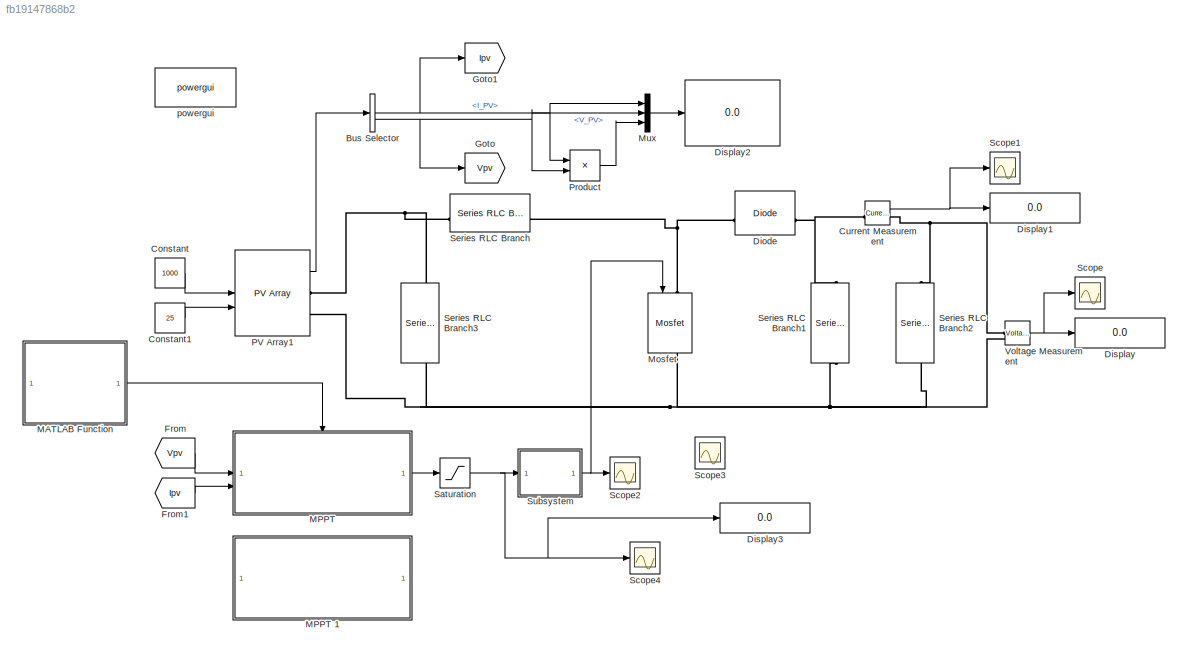
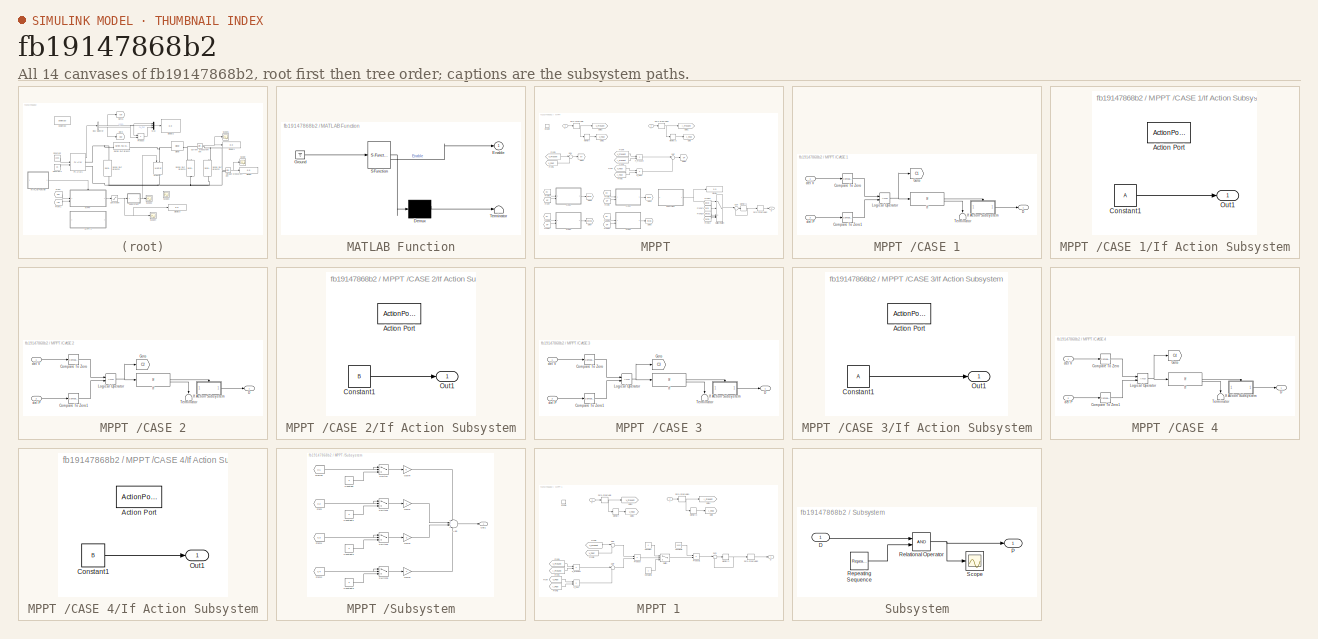
[diagram: thumbnail index - all 14 canvases of the model, root first then tree order]
MODEL slx_fb19147868b2
KIND model
CONFIG AbsTol = auto
CONFIG EnableMultiTasking = off
CONFIG FixedStep = Ts
CONFIG InitFcn = Ts = 1e-6;\nN = 1000;\nA = -0.001;\nB = 0.001\n
CONFIG MaxStep = auto
CONFIG MinStep = auto
CONFIG RelTol = 1e-3
CONFIG SampleTimeConstraint = Unconstrained
CONFIG SolverName = FixedStepAuto
CONFIG StartTime = 0.0
CONFIG StopTime = 1
BLOCK [BusSelector] Bus Selector
  OutputSignals = I_PV,V_PV
BLOCK [Constant] Constant
  Value = 1000
BLOCK [Constant] Constant1
  Value = 25
BLOCK [Reference] Current Measurement  REF=spsCurrentMeasurementLib/Current Measurement
  LibrarySourceBlock = sps_lib/Sensors and Measurements/Current Measurement
  SourceBlock = spsCurrentMeasurementLib/Current Measurement
  SourceType = Current Measurement
  UserDataPersistent = on
BLOCK [Reference] Diode  REF=spsDiodeLib/Diode
  LibrarySourceBlock = sps_lib/Power Electronics/Diode
  SourceBlock = spsDiodeLib/Diode
  SourceType = Diode
BLOCK [Display] Display
  Decimation = 1
BLOCK [Display] Display1
  Decimation = 1
BLOCK [Display] Display2
  Decimation = 1
BLOCK [Display] Display3
  Decimation = 1
BLOCK [From] From
  GotoTag = Vpv
BLOCK [From] From1
  GotoTag = Ipv
BLOCK [Goto] Goto
  GotoTag = Vpv
BLOCK [Goto] Goto1
  GotoTag = Ipv
BLOCK [SubSystem] MATLAB Function
  ErrorFcn = Stateflow.Translate.translate
  PermitHierarchicalResolution = ExplicitOnly
  SFBlockType = MATLAB Function
  TreatAsAtomicUnit = on
BLOCK [Demux] MATLAB Function/ Demux 
  Outputs = 1
BLOCK [Ground] MATLAB Function/ Ground 
BLOCK [S-Function] MATLAB Function/ SFunction 
  EnableBusSupport = on
  FunctionName = sf_sfun
  PortCounts = [1 2]
  SFcnIsStateOwnerBlock = off
  SFunctionDeploymentMode = off
  Tag = Stateflow S-Function 2
BLOCK [Terminator] MATLAB Function/ Terminator 
BLOCK [Outport] MATLAB Function/Enable
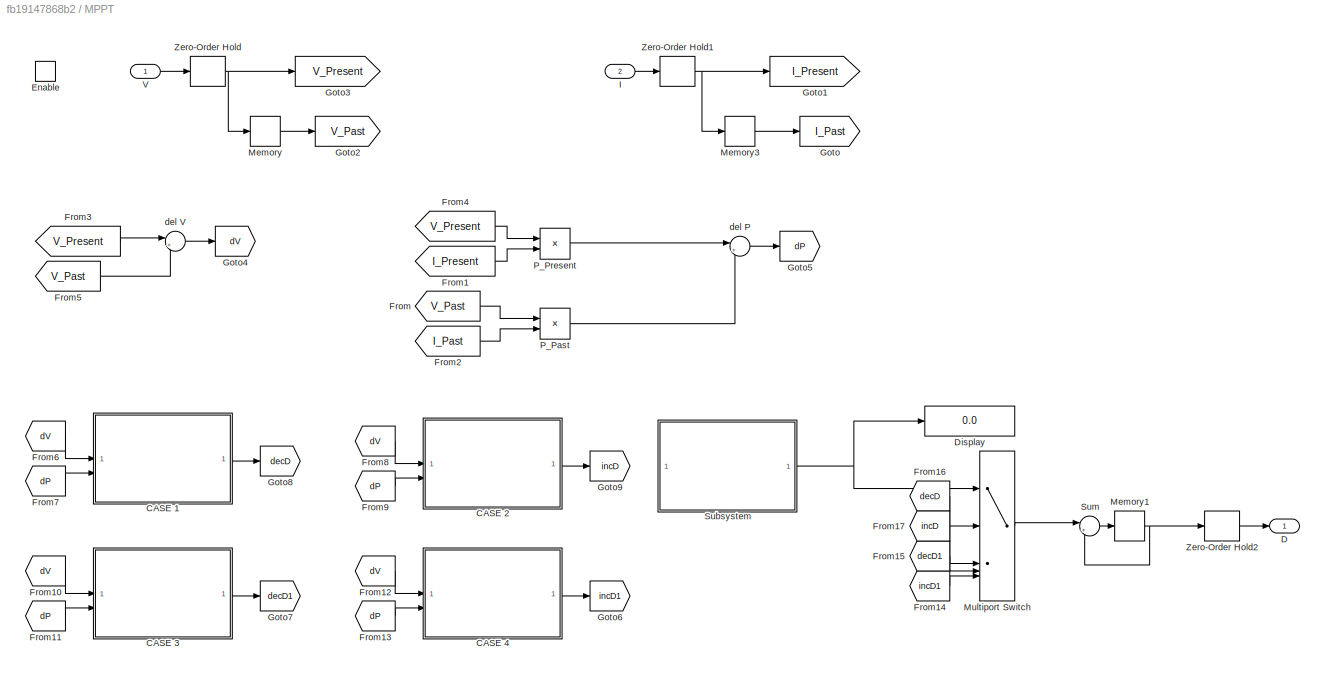
BLOCK [SubSystem] MPPT 
BLOCK [SubSystem] MPPT /CASE 1
BLOCK [Reference] MPPT /CASE 1/Compare To Zero  REF=simulink/Logic and Bit
Operations/Compare
To Zero
  SourceBlock = simulink/Logic and Bit\nOperations/Compare\nTo Zero
  SourceType = Compare To Zero
BLOCK [Reference] MPPT /CASE 1/Compare To Zero1  REF=simulink/Logic and Bit
Operations/Compare
To Zero
  SourceBlock = simulink/Logic and Bit\nOperations/Compare\nTo Zero
  SourceType = Compare To Zero
BLOCK [Outport] MPPT /CASE 1/D
BLOCK [Goto] MPPT /CASE 1/Goto
  GotoTag = C1
  TagVisibility = global
BLOCK [If] MPPT /CASE 1/If
  IfExpression = u1 ~= 1
BLOCK [SubSystem] MPPT /CASE 1/If Action Subsystem
  TreatAsAtomicUnit = on
BLOCK [ActionPort] MPPT /CASE 1/If Action Subsystem/Action Port
  ActionPortLabel = if(u1 ~= 1)
BLOCK [Constant] MPPT /CASE 1/If Action Subsystem/Constant1
  Value = A
BLOCK [Outport] MPPT /CASE 1/If Action Subsystem/Out1
BLOCK [Logic] MPPT /CASE 1/Logical Operator
  AllPortsSameDT = off
  OutDataTypeStr = boolean
BLOCK [Terminator] MPPT /CASE 1/Terminator
  NameLocation = left
BLOCK [Inport] MPPT /CASE 1/del P
  Port = 2
BLOCK [Inport] MPPT /CASE 1/del V
BLOCK [SubSystem] MPPT /CASE 2
BLOCK [Reference] MPPT /CASE 2/Compare To Zero  REF=simulink/Logic and Bit
Operations/Compare
To Zero
  SourceBlock = simulink/Logic and Bit\nOperations/Compare\nTo Zero
  SourceType = Compare To Zero
BLOCK [Reference] MPPT /CASE 2/Compare To Zero1  REF=simulink/Logic and Bit
Operations/Compare
To Zero
  SourceBlock = simulink/Logic and Bit\nOperations/Compare\nTo Zero
  SourceType = Compare To Zero
BLOCK [Outport] MPPT /CASE 2/D
BLOCK [Goto] MPPT /CASE 2/Goto
  GotoTag = C2
  TagVisibility = global
BLOCK [If] MPPT /CASE 2/If
  IfExpression = u1 ~= 1
BLOCK [SubSystem] MPPT /CASE 2/If Action Subsystem
  TreatAsAtomicUnit = on
BLOCK [ActionPort] MPPT /CASE 2/If Action Subsystem/Action Port
  ActionPortLabel = if(u1 ~= 1)
BLOCK [Constant] MPPT /CASE 2/If Action Subsystem/Constant1
  Value = B
BLOCK [Outport] MPPT /CASE 2/If Action Subsystem/Out1
BLOCK [Logic] MPPT /CASE 2/Logical Operator
  AllPortsSameDT = off
  OutDataTypeStr = boolean
BLOCK [Terminator] MPPT /CASE 2/Terminator
  NameLocation = left
BLOCK [Inport] MPPT /CASE 2/del P
  Port = 2
BLOCK [Inport] MPPT /CASE 2/del V
BLOCK [SubSystem] MPPT /CASE 3
BLOCK [Reference] MPPT /CASE 3/Compare To Zero  REF=simulink/Logic and Bit
Operations/Compare
To Zero
  SourceBlock = simulink/Logic and Bit\nOperations/Compare\nTo Zero
  SourceType = Compare To Zero
BLOCK [Reference] MPPT /CASE 3/Compare To Zero1  REF=simulink/Logic and Bit
Operations/Compare
To Zero
  SourceBlock = simulink/Logic and Bit\nOperations/Compare\nTo Zero
  SourceType = Compare To Zero
BLOCK [Outport] MPPT /CASE 3/D
BLOCK [Goto] MPPT /CASE 3/Goto
  GotoTag = C3
  TagVisibility = global
BLOCK [If] MPPT /CASE 3/If
  IfExpression = u1 ~= 1
BLOCK [SubSystem] MPPT /CASE 3/If Action Subsystem
  TreatAsAtomicUnit = on
BLOCK [ActionPort] MPPT /CASE 3/If Action Subsystem/Action Port
  ActionPortLabel = if(u1 ~= 1)
BLOCK [Constant] MPPT /CASE 3/If Action Subsystem/Constant1
  Value = A
BLOCK [Outport] MPPT /CASE 3/If Action Subsystem/Out1
BLOCK [Logic] MPPT /CASE 3/Logical Operator
  AllPortsSameDT = off
  OutDataTypeStr = boolean
BLOCK [Terminator] MPPT /CASE 3/Terminator
  NameLocation = left
BLOCK [Inport] MPPT /CASE 3/del P
  Port = 2
BLOCK [Inport] MPPT /CASE 3/del V
BLOCK [SubSystem] MPPT /CASE 4
BLOCK [Reference] MPPT /CASE 4/Compare To Zero  REF=simulink/Logic and Bit
Operations/Compare
To Zero
  SourceBlock = simulink/Logic and Bit\nOperations/Compare\nTo Zero
  SourceType = Compare To Zero
BLOCK [Reference] MPPT /CASE 4/Compare To Zero1  REF=simulink/Logic and Bit
Operations/Compare
To Zero
  SourceBlock = simulink/Logic and Bit\nOperations/Compare\nTo Zero
  SourceType = Compare To Zero
BLOCK [Outport] MPPT /CASE 4/D
BLOCK [Goto] MPPT /CASE 4/Goto
  GotoTag = C4
  TagVisibility = global
BLOCK [If] MPPT /CASE 4/If
  IfExpression = u1 ~= 1
BLOCK [SubSystem] MPPT /CASE 4/If Action Subsystem
  TreatAsAtomicUnit = on
BLOCK [ActionPort] MPPT /CASE 4/If Action Subsystem/Action Port
  ActionPortLabel = if(u1 ~= 1)
BLOCK [Constant] MPPT /CASE 4/If Action Subsystem/Constant1
  Value = B
BLOCK [Outport] MPPT /CASE 4/If Action Subsystem/Out1
BLOCK [Logic] MPPT /CASE 4/Logical Operator
  AllPortsSameDT = off
  OutDataTypeStr = boolean
BLOCK [Terminator] MPPT /CASE 4/Terminator
  NameLocation = left
BLOCK [Inport] MPPT /CASE 4/del P
  Port = 2
BLOCK [Inport] MPPT /CASE 4/del V
BLOCK [Outport] MPPT /D
BLOCK [Display] MPPT /Display
  Decimation = 1
BLOCK [EnablePort] MPPT /Enable
BLOCK [From] MPPT /From
  GotoTag = V_Past
BLOCK [From] MPPT /From1
  GotoTag = I_Present
BLOCK [From] MPPT /From10
  GotoTag = dV
BLOCK [From] MPPT /From11
  GotoTag = dP
BLOCK [From] MPPT /From12
  GotoTag = dV
BLOCK [From] MPPT /From13
  GotoTag = dP
BLOCK [From] MPPT /From14
  GotoTag = incD1
BLOCK [From] MPPT /From15
  GotoTag = decD1
BLOCK [From] MPPT /From16
  GotoTag = decD
BLOCK [From] MPPT /From17
  GotoTag = incD
BLOCK [From] MPPT /From2
  GotoTag = I_Past
BLOCK [From] MPPT /From3
  GotoTag = V_Present
BLOCK [From] MPPT /From4
  GotoTag = V_Present
BLOCK [From] MPPT /From5
  GotoTag = V_Past
BLOCK [From] MPPT /From6
  GotoTag = dV
BLOCK [From] MPPT /From7
  GotoTag = dP
BLOCK [From] MPPT /From8
  GotoTag = dV
BLOCK [From] MPPT /From9
  GotoTag = dP
BLOCK [Goto] MPPT /Goto
  GotoTag = I_Past
BLOCK [Goto] MPPT /Goto1
  GotoTag = I_Present
BLOCK [Goto] MPPT /Goto2
  GotoTag = V_Past
BLOCK [Goto] MPPT /Goto3
  GotoTag = V_Present
BLOCK [Goto] MPPT /Goto4
  GotoTag = dV
BLOCK [Goto] MPPT /Goto5
  GotoTag = dP
BLOCK [Goto] MPPT /Goto6
  GotoTag = incD1
BLOCK [Goto] MPPT /Goto7
  GotoTag = decD1
BLOCK [Goto] MPPT /Goto8
  GotoTag = decD
BLOCK [Goto] MPPT /Goto9
  GotoTag = incD
BLOCK [Inport] MPPT /I
  Port = 2
BLOCK [Memory] MPPT /Memory
BLOCK [Memory] MPPT /Memory1
BLOCK [Memory] MPPT /Memory3
BLOCK [MultiPortSwitch] MPPT /Multiport Switch
  InputSameDT = off
  Inputs = 4
  SaturateOnIntegerOverflow = off
BLOCK [Product] MPPT /P_Past
BLOCK [Product] MPPT /P_Present
BLOCK [SubSystem] MPPT /Subsystem
BLOCK [Sum] MPPT /Subsystem/Add
  Inputs = ++++
BLOCK [Constant] MPPT /Subsystem/Constant
  Value = 0
BLOCK [Constant] MPPT /Subsystem/Constant1
  Value = 0
BLOCK [Constant] MPPT /Subsystem/Constant2
  Value = 0
BLOCK [Constant] MPPT /Subsystem/Constant3
  Value = 0
BLOCK [From] MPPT /Subsystem/From
  GotoTag = C2
  TagVisibility = global
BLOCK [From] MPPT /Subsystem/From1
  GotoTag = C3
  TagVisibility = global
BLOCK [From] MPPT /Subsystem/From18
  GotoTag = C1
  TagVisibility = global
BLOCK [From] MPPT /Subsystem/From2
  GotoTag = C4
  TagVisibility = global
BLOCK [Gain] MPPT /Subsystem/Gain1
  Gain = 2
BLOCK [Gain] MPPT /Subsystem/Gain2
  Gain = 3
BLOCK [Gain] MPPT /Subsystem/Gain3
  Gain = 4
BLOCK [Gain] MPPT /Subsystem/Gain4
BLOCK [Outport] MPPT /Subsystem/Out1
BLOCK [Switch] MPPT /Subsystem/Switch
  InputSameDT = off
  SaturateOnIntegerOverflow = off
  Threshold = 1
BLOCK [Switch] MPPT /Subsystem/Switch1
  InputSameDT = off
  SaturateOnIntegerOverflow = off
  Threshold = 1
BLOCK [Switch] MPPT /Subsystem/Switch2
  InputSameDT = off
  SaturateOnIntegerOverflow = off
  Threshold = 1
BLOCK [Switch] MPPT /Subsystem/Switch3
  InputSameDT = off
  SaturateOnIntegerOverflow = off
  Threshold = 1
BLOCK [Sum] MPPT /Sum
  Inputs = |++
BLOCK [Inport] MPPT /V
BLOCK [ZeroOrderHold] MPPT /Zero-Order Hold
  SampleTime = Ts
BLOCK [ZeroOrderHold] MPPT /Zero-Order Hold1
  SampleTime = Ts
BLOCK [ZeroOrderHold] MPPT /Zero-Order Hold2
  SampleTime = Ts
BLOCK [Sum] MPPT /del P
  Inputs = |+-
  NameLocation = top
BLOCK [Sum] MPPT /del V
  Inputs = |+-
  NameLocation = top
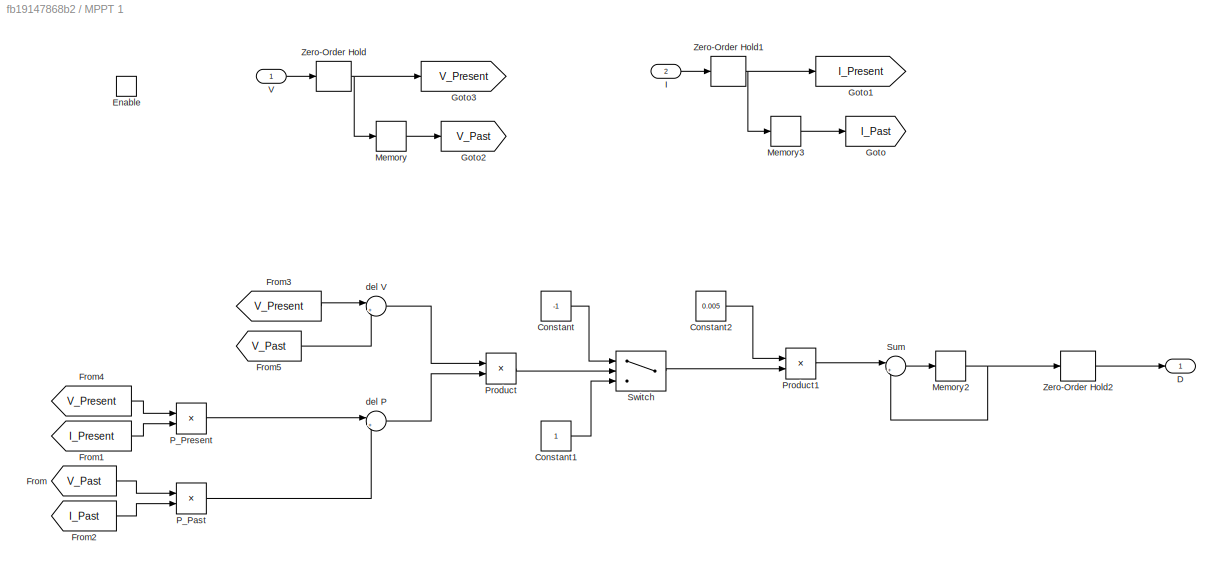
BLOCK [SubSystem] MPPT 1
  Commented = on
BLOCK [Constant] MPPT 1/Constant
  Value = -1
BLOCK [Constant] MPPT 1/Constant1
BLOCK [Constant] MPPT 1/Constant2
  Value = 0.005
BLOCK [Outport] MPPT 1/D
BLOCK [EnablePort] MPPT 1/Enable
BLOCK [From] MPPT 1/From
  GotoTag = V_Past
BLOCK [From] MPPT 1/From1
  GotoTag = I_Present
BLOCK [From] MPPT 1/From2
  GotoTag = I_Past
BLOCK [From] MPPT 1/From3
  GotoTag = V_Present
BLOCK [From] MPPT 1/From4
  GotoTag = V_Present
BLOCK [From] MPPT 1/From5
  GotoTag = V_Past
BLOCK [Goto] MPPT 1/Goto
  GotoTag = I_Past
BLOCK [Goto] MPPT 1/Goto1
  GotoTag = I_Present
BLOCK [Goto] MPPT 1/Goto2
  GotoTag = V_Past
BLOCK [Goto] MPPT 1/Goto3
  GotoTag = V_Present
BLOCK [Inport] MPPT 1/I
  Port = 2
BLOCK [Memory] MPPT 1/Memory
BLOCK [Memory] MPPT 1/Memory2
BLOCK [Memory] MPPT 1/Memory3
BLOCK [Product] MPPT 1/P_Past
BLOCK [Product] MPPT 1/P_Present
BLOCK [Product] MPPT 1/Product
BLOCK [Product] MPPT 1/Product1
BLOCK [Sum] MPPT 1/Sum
  Inputs = |++
  NameLocation = top
BLOCK [Switch] MPPT 1/Switch
  Criteria = u2 > Threshold
  InputSameDT = off
  SaturateOnIntegerOverflow = off
BLOCK [Inport] MPPT 1/V
BLOCK [ZeroOrderHold] MPPT 1/Zero-Order Hold
  SampleTime = Ts
BLOCK [ZeroOrderHold] MPPT 1/Zero-Order Hold1
  SampleTime = Ts
BLOCK [ZeroOrderHold] MPPT 1/Zero-Order Hold2
  SampleTime = -1
BLOCK [Sum] MPPT 1/del P
  Inputs = |+-
  NameLocation = top
BLOCK [Sum] MPPT 1/del V
  Inputs = |+-
  NameLocation = top
BLOCK [Reference] Mosfet  REF=spsMosfetLib/Mosfet
  LibrarySourceBlock = sps_lib/Power Electronics/Mosfet
  NameLocation = left
  SourceBlock = spsMosfetLib/Mosfet
  SourceType = Mosfet
BLOCK [Mux] Mux
  DisplayOption = bar
  Inputs = 3
BLOCK [Reference] PV Array1  REF=spsPVArrayLib/PV Array
  LibrarySourceBlock = sps_lib/Sources/PV Array
  SourceBlock = spsPVArrayLib/PV Array
  SourceType = PV array
BLOCK [Product] Product
BLOCK [Saturate] Saturation
  LowerLimit = 0.005
  UpperLimit = 0.9
BLOCK [Scope] Scope
  Floating = off
  NumInputPorts = 1
  ScopeSpecificationString = Simulink.scopes.TimeScopeBlockCfg('CurrentConfiguration', extmgr.ConfigurationSet(extmgr.Configuration('Core','General UI',true),extmgr.Configuration('Core','Source UI',true),extmgr.Configuration('Sources','WiredSimulink',true,'DataLoggingVariableName','ScopeData2'),extmgr.Configuration('Visuals','Time Domain',true,'SerializedDisplays',{struct('MinYLimReal','-49.98574','MaxYLimReal','449.87187','Y...<+1576ch>
BLOCK [Scope] Scope1
  Floating = off
  NumInputPorts = 1
  ScopeSpecificationString = Simulink.scopes.TimeScopeBlockCfg('CurrentConfiguration', extmgr.ConfigurationSet(extmgr.Configuration('Core','General UI',true),extmgr.Configuration('Core','Source UI',true),extmgr.Configuration('Sources','WiredSimulink',true),extmgr.Configuration('Visuals','Time Domain',true,'SerializedDisplays',{struct('MinYLimReal','-33.49361','MaxYLimReal','320.44813','YLabelReal','','MinYLimMag','0.00000','M...<+1509ch>
BLOCK [Scope] Scope2
  Floating = off
  NumInputPorts = 1
  ScopeSpecificationString = Simulink.scopes.TimeScopeBlockCfg('CurrentConfiguration', extmgr.ConfigurationSet(extmgr.Configuration('Core','General UI',true),extmgr.Configuration('Core','Source UI',true),extmgr.Configuration('Sources','WiredSimulink',true,'DataLoggingVariableName','ScopeData1'),extmgr.Configuration('Visuals','Time Domain',true,'SerializedDisplays',{struct('MinYLimReal','-0.125','MaxYLimReal','1.125','YLabelRe...<+1516ch>
BLOCK [Scope] Scope3
  Floating = off
  NumInputPorts = 1
  ScopeSpecificationString = Simulink.scopes.TimeScopeBlockCfg('CurrentConfiguration', extmgr.ConfigurationSet(extmgr.Configuration('Core','General UI',true),extmgr.Configuration('Core','Source UI',true),extmgr.Configuration('Sources','WiredSimulink',true,'DataLoggingVariableName','ScopeData1'),extmgr.Configuration('Visuals','Time Domain',true,'SerializedDisplays',{struct('MinYLimReal','-0.1125','MaxYLimReal','1.0125','YLabel...<+1557ch>
BLOCK [Scope] Scope4
  Floating = off
  NumInputPorts = 1
  ScopeSpecificationString = Simulink.scopes.TimeScopeBlockCfg('CurrentConfiguration', extmgr.ConfigurationSet(extmgr.Configuration('Core','General UI',true),extmgr.Configuration('Core','Source UI',true),extmgr.Configuration('Sources','WiredSimulink',true,'DataLoggingVariableName','ScopeData2'),extmgr.Configuration('Visuals','Time Domain',true,'SerializedDisplays',{struct('MinYLimReal','-0.0295','MaxYLimReal','0.3155','YLabel...<+1551ch>
BLOCK [Reference] Series RLC Branch  REF=spsSeriesRLCBranchLib/Series RLC Branch
  LibrarySourceBlock = sps_lib/Passives/Series RLC Branch
  SourceBlock = spsSeriesRLCBranchLib/Series RLC Branch
  SourceType = Series RLC Branch
BLOCK [Reference] Series RLC Branch1  REF=spsSeriesRLCBranchLib/Series RLC Branch
  LibrarySourceBlock = sps_lib/Passives/Series RLC Branch
  NameLocation = left
  SourceBlock = spsSeriesRLCBranchLib/Series RLC Branch
  SourceType = Series RLC Branch
BLOCK [Reference] Series RLC Branch2  REF=spsSeriesRLCBranchLib/Series RLC Branch
  LibrarySourceBlock = sps_lib/Passives/Series RLC Branch
  NameLocation = left
  SourceBlock = spsSeriesRLCBranchLib/Series RLC Branch
  SourceType = Series RLC Branch
BLOCK [Reference] Series RLC Branch3  REF=spsSeriesRLCBranchLib/Series RLC Branch
  LibrarySourceBlock = sps_lib/Passives/Series RLC Branch
  NameLocation = left
  SourceBlock = spsSeriesRLCBranchLib/Series RLC Branch
  SourceType = Series RLC Branch
BLOCK [SubSystem] Subsystem
BLOCK [Inport] Subsystem/D
BLOCK [Outport] Subsystem/P
BLOCK [RelationalOperator] Subsystem/Relational Operator
  InputSameDT = off
  OutDataTypeStr = boolean
  RndMeth = Simplest
BLOCK [Reference] Subsystem/Repeating Sequence  REF=simulink/Sources/Repeating
Sequence
  SourceBlock = simulink/Sources/Repeating\nSequence
  SourceType = Repeating table
BLOCK [Scope] Subsystem/Scope
  Floating = off
  NumInputPorts = 1
  ScopeSpecificationString = Simulink.scopes.TimeScopeBlockCfg('CurrentConfiguration', extmgr.ConfigurationSet(extmgr.Configuration('Core','General UI',true),extmgr.Configuration('Core','Source UI',true),extmgr.Configuration('Sources','WiredSimulink',true,'DataLoggingVariableName','ScopeData1'),extmgr.Configuration('Visuals','Time Domain',true,'SerializedDisplays',{struct('MinYLimReal','-0.125','MaxYLimReal','1.125','YLabelRe...<+1526ch>
BLOCK [Reference] Voltage Measurement  REF=spsVoltageMeasurementLib/Voltage Measurement
  LibrarySourceBlock = sps_lib/Sensors and Measurements/Voltage Measurement
  SourceBlock = spsVoltageMeasurementLib/Voltage Measurement
  SourceType = Voltage Measurement
  UserDataPersistent = on
BLOCK [Reference] powergui  REF=sps_lib/powergui
  LibrarySourceBlock = sps_lib/powergui
  Priority = 1
  SourceBlock = sps_lib/powergui
  SourceType = PSB option menu block
NET Bus Selector:1 -> Goto1:1, Mux:1, Product:1
NET Bus Selector:2 -> Goto:1, Mux:2, Product:2
LINE Constant1:1 -> PV Array1:2
LINE Constant:1 -> PV Array1:1
NET Current Measurement:1 -> Display1:1, Scope1:1
LINE From1:1 -> MPPT :2
LINE From:1 -> MPPT :1
LINE MATLAB Function:1 -> MPPT :enable
LINE MPPT /CASE 1/Compare To Zero1:1 -> MPPT /CASE 1/Logical Operator:2
LINE MPPT /CASE 1/Compare To Zero:1 -> MPPT /CASE 1/Logical Operator:1
LINE MPPT /CASE 1/If Action Subsystem/Constant1:1 -> MPPT /CASE 1/If Action Subsystem/Out1:1
LINE MPPT /CASE 1/If Action Subsystem:1 -> MPPT /CASE 1/D:1
LINE MPPT /CASE 1/If:1 -> MPPT /CASE 1/If Action Subsystem:ifaction
LINE MPPT /CASE 1/If:2 -> MPPT /CASE 1/Terminator:1
NET MPPT /CASE 1/Logical Operator:1 -> MPPT /CASE 1/Goto:1, MPPT /CASE 1/If:1
LINE MPPT /CASE 1/del P:1 -> MPPT /CASE 1/Compare To Zero1:1
LINE MPPT /CASE 1/del V:1 -> MPPT /CASE 1/Compare To Zero:1
LINE MPPT /CASE 1:1 -> MPPT /Goto8:1
LINE MPPT /CASE 2/Compare To Zero1:1 -> MPPT /CASE 2/Logical Operator:2
LINE MPPT /CASE 2/Compare To Zero:1 -> MPPT /CASE 2/Logical Operator:1
LINE MPPT /CASE 2/If Action Subsystem/Constant1:1 -> MPPT /CASE 2/If Action Subsystem/Out1:1
LINE MPPT /CASE 2/If Action Subsystem:1 -> MPPT /CASE 2/D:1
LINE MPPT /CASE 2/If:1 -> MPPT /CASE 2/If Action Subsystem:ifaction
LINE MPPT /CASE 2/If:2 -> MPPT /CASE 2/Terminator:1
NET MPPT /CASE 2/Logical Operator:1 -> MPPT /CASE 2/Goto:1, MPPT /CASE 2/If:1
LINE MPPT /CASE 2/del P:1 -> MPPT /CASE 2/Compare To Zero1:1
LINE MPPT /CASE 2/del V:1 -> MPPT /CASE 2/Compare To Zero:1
LINE MPPT /CASE 2:1 -> MPPT /Goto9:1
LINE MPPT /CASE 3/Compare To Zero1:1 -> MPPT /CASE 3/Logical Operator:2
LINE MPPT /CASE 3/Compare To Zero:1 -> MPPT /CASE 3/Logical Operator:1
LINE MPPT /CASE 3/If Action Subsystem/Constant1:1 -> MPPT /CASE 3/If Action Subsystem/Out1:1
LINE MPPT /CASE 3/If Action Subsystem:1 -> MPPT /CASE 3/D:1
LINE MPPT /CASE 3/If:1 -> MPPT /CASE 3/If Action Subsystem:ifaction
LINE MPPT /CASE 3/If:2 -> MPPT /CASE 3/Terminator:1
NET MPPT /CASE 3/Logical Operator:1 -> MPPT /CASE 3/Goto:1, MPPT /CASE 3/If:1
LINE MPPT /CASE 3/del P:1 -> MPPT /CASE 3/Compare To Zero1:1
LINE MPPT /CASE 3/del V:1 -> MPPT /CASE 3/Compare To Zero:1
LINE MPPT /CASE 3:1 -> MPPT /Goto7:1
LINE MPPT /CASE 4/Compare To Zero1:1 -> MPPT /CASE 4/Logical Operator:2
LINE MPPT /CASE 4/Compare To Zero:1 -> MPPT /CASE 4/Logical Operator:1
LINE MPPT /CASE 4/If Action Subsystem/Constant1:1 -> MPPT /CASE 4/If Action Subsystem/Out1:1
LINE MPPT /CASE 4/If Action Subsystem:1 -> MPPT /CASE 4/D:1
LINE MPPT /CASE 4/If:1 -> MPPT /CASE 4/If Action Subsystem:ifaction
LINE MPPT /CASE 4/If:2 -> MPPT /CASE 4/Terminator:1
NET MPPT /CASE 4/Logical Operator:1 -> MPPT /CASE 4/Goto:1, MPPT /CASE 4/If:1
LINE MPPT /CASE 4/del P:1 -> MPPT /CASE 4/Compare To Zero1:1
LINE MPPT /CASE 4/del V:1 -> MPPT /CASE 4/Compare To Zero:1
LINE MPPT /CASE 4:1 -> MPPT /Goto6:1
LINE MPPT /From10:1 -> MPPT /CASE 3:1
LINE MPPT /From11:1 -> MPPT /CASE 3:2
LINE MPPT /From12:1 -> MPPT /CASE 4:1
LINE MPPT /From13:1 -> MPPT /CASE 4:2
LINE MPPT /From14:1 -> MPPT /Multiport Switch:5
LINE MPPT /From15:1 -> MPPT /Multiport Switch:4
LINE MPPT /From16:1 -> MPPT /Multiport Switch:2
LINE MPPT /From17:1 -> MPPT /Multiport Switch:3
LINE MPPT /From1:1 -> MPPT /P_Present:2
LINE MPPT /From2:1 -> MPPT /P_Past:2
LINE MPPT /From3:1 -> MPPT /del V:1
LINE MPPT /From4:1 -> MPPT /P_Present:1
LINE MPPT /From5:1 -> MPPT /del V:2
LINE MPPT /From6:1 -> MPPT /CASE 1:1
LINE MPPT /From7:1 -> MPPT /CASE 1:2
LINE MPPT /From8:1 -> MPPT /CASE 2:1
LINE MPPT /From9:1 -> MPPT /CASE 2:2
LINE MPPT /From:1 -> MPPT /P_Past:1
LINE MPPT /I:1 -> MPPT /Zero-Order Hold1:1
NET MPPT /Memory1:1 -> MPPT /Sum:2, MPPT /Zero-Order Hold2:1
LINE MPPT /Memory3:1 -> MPPT /Goto:1
LINE MPPT /Memory:1 -> MPPT /Goto2:1
LINE MPPT /Multiport Switch:1 -> MPPT /Sum:1
LINE MPPT /P_Past:1 -> MPPT /del P:2
LINE MPPT /P_Present:1 -> MPPT /del P:1
LINE MPPT /Subsystem/Add:1 -> MPPT /Subsystem/Out1:1
LINE MPPT /Subsystem/Constant1:1 -> MPPT /Subsystem/Switch1:3
LINE MPPT /Subsystem/Constant2:1 -> MPPT /Subsystem/Switch2:3
LINE MPPT /Subsystem/Constant3:1 -> MPPT /Subsystem/Switch3:3
LINE MPPT /Subsystem/Constant:1 -> MPPT /Subsystem/Switch:3
NET MPPT /Subsystem/From18:1 -> MPPT /Subsystem/Switch:1, MPPT /Subsystem/Switch:2
NET MPPT /Subsystem/From1:1 -> MPPT /Subsystem/Switch2:1, MPPT /Subsystem/Switch2:2
NET MPPT /Subsystem/From2:1 -> MPPT /Subsystem/Switch3:1, MPPT /Subsystem/Switch3:2
NET MPPT /Subsystem/From:1 -> MPPT /Subsystem/Switch1:1, MPPT /Subsystem/Switch1:2
LINE MPPT /Subsystem/Gain1:1 -> MPPT /Subsystem/Add:2
LINE MPPT /Subsystem/Gain2:1 -> MPPT /Subsystem/Add:3
LINE MPPT /Subsystem/Gain3:1 -> MPPT /Subsystem/Add:4
LINE MPPT /Subsystem/Gain4:1 -> MPPT /Subsystem/Add:1
LINE MPPT /Subsystem/Switch1:1 -> MPPT /Subsystem/Gain1:1
LINE MPPT /Subsystem/Switch2:1 -> MPPT /Subsystem/Gain2:1
LINE MPPT /Subsystem/Switch3:1 -> MPPT /Subsystem/Gain3:1
LINE MPPT /Subsystem/Switch:1 -> MPPT /Subsystem/Gain4:1
NET MPPT /Subsystem:1 -> MPPT /Display:1, MPPT /Multiport Switch:1
LINE MPPT /Sum:1 -> MPPT /Memory1:1
LINE MPPT /V:1 -> MPPT /Zero-Order Hold:1
NET MPPT /Zero-Order Hold1:1 -> MPPT /Goto1:1, MPPT /Memory3:1
LINE MPPT /Zero-Order Hold2:1 -> MPPT /D:1
NET MPPT /Zero-Order Hold:1 -> MPPT /Goto3:1, MPPT /Memory:1
LINE MPPT /del P:1 -> MPPT /Goto5:1
LINE MPPT /del V:1 -> MPPT /Goto4:1
LINE MPPT 1/Constant1:1 -> MPPT 1/Switch:3
LINE MPPT 1/Constant2:1 -> MPPT 1/Product1:1
LINE MPPT 1/Constant:1 -> MPPT 1/Switch:1
LINE MPPT 1/From1:1 -> MPPT 1/P_Present:2
LINE MPPT 1/From2:1 -> MPPT 1/P_Past:2
LINE MPPT 1/From3:1 -> MPPT 1/del V:1
LINE MPPT 1/From4:1 -> MPPT 1/P_Present:1
LINE MPPT 1/From5:1 -> MPPT 1/del V:2
LINE MPPT 1/From:1 -> MPPT 1/P_Past:1
LINE MPPT 1/I:1 -> MPPT 1/Zero-Order Hold1:1
NET MPPT 1/Memory2:1 -> MPPT 1/Sum:2, MPPT 1/Zero-Order Hold2:1
LINE MPPT 1/Memory3:1 -> MPPT 1/Goto:1
LINE MPPT 1/Memory:1 -> MPPT 1/Goto2:1
LINE MPPT 1/P_Past:1 -> MPPT 1/del P:2
LINE MPPT 1/P_Present:1 -> MPPT 1/del P:1
LINE MPPT 1/Product1:1 -> MPPT 1/Sum:1
LINE MPPT 1/Product:1 -> MPPT 1/Switch:2
LINE MPPT 1/Sum:1 -> MPPT 1/Memory2:1
LINE MPPT 1/Switch:1 -> MPPT 1/Product1:2
LINE MPPT 1/V:1 -> MPPT 1/Zero-Order Hold:1
NET MPPT 1/Zero-Order Hold1:1 -> MPPT 1/Goto1:1, MPPT 1/Memory3:1
LINE MPPT 1/Zero-Order Hold2:1 -> MPPT 1/D:1
NET MPPT 1/Zero-Order Hold:1 -> MPPT 1/Goto3:1, MPPT 1/Memory:1
LINE MPPT 1/del P:1 -> MPPT 1/Product:2
LINE MPPT 1/del V:1 -> MPPT 1/Product:1
LINE MPPT :1 -> Saturation:1
LINE Mux:1 -> Display2:1
LINE PV Array1:1 -> Bus Selector:1
LINE Product:1 -> Mux:3
NET Saturation:1 -> Display3:1, Scope4:1, Subsystem:1
LINE Subsystem/D:1 -> Subsystem/Relational Operator:1
NET Subsystem/Relational Operator:1 -> Subsystem/P:1, Subsystem/Scope:1
LINE Subsystem/Repeating Sequence:1 -> Subsystem/Relational Operator:2
NET Subsystem:1 -> Mosfet:1, Scope2:1
NET Voltage Measurement:1 -> Display:1, Scope:1
PNET net1: Current Measurement:LConn1 -- Diode:RConn1 -- Series RLC Branch1:LConn1
PNET net2: Current Measurement:RConn1 -- Series RLC Branch2:LConn1 -- Voltage Measurement:LConn1
PNET net3: Diode:LConn1 -- Mosfet:LConn1 -- Series RLC Branch:RConn1
PNET net4: Mosfet:RConn1 -- PV Array1:RConn2 -- Series RLC Branch1:RConn1 -- Series RLC Branch2:RConn1 -- Series RLC Branch3:RConn1 -- Voltage Measurement:LConn2
PNET net5: PV Array1:RConn1 -- Series RLC Branch3:LConn1 -- Series RLC Branch:LConn1
note: NET lines group one-source signal fan-out (src -> all destinations, sorted); 1:1 wires keep LINE; PNET lines group multi-terminal physical nets as a canonical sorted terminal list (undirected conserving connections); 2-terminal nets keep the pairwise PLINE form
CHART MATLAB Function states=1 transitions=1
  STATE_LABEL 'eML_blk_kernel()'
  STATE_LABEL 'SCRIPT:\nfunction Enable  = counter\n    persistent n\n    if isempty(n)\n        n = 0;\n    end\n\n    n = n + 1;\n    if n >= 1000\n\n        Enable = 1;\n        n = 0;\n    else\n       \n        Enable = 0;\n    end\nend\n'
CHART  states=0 transitions=0
